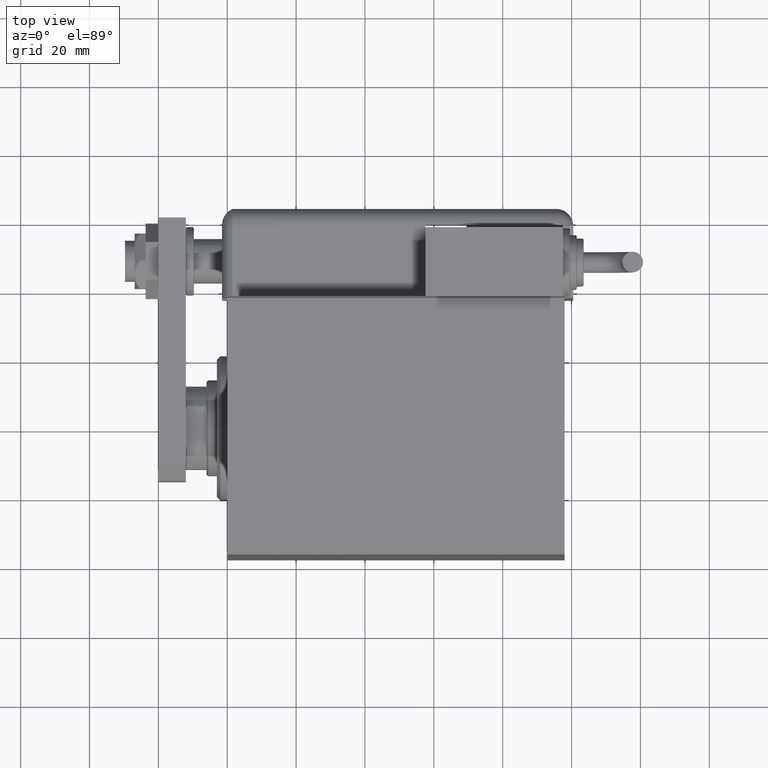
[diagram: clean part render]
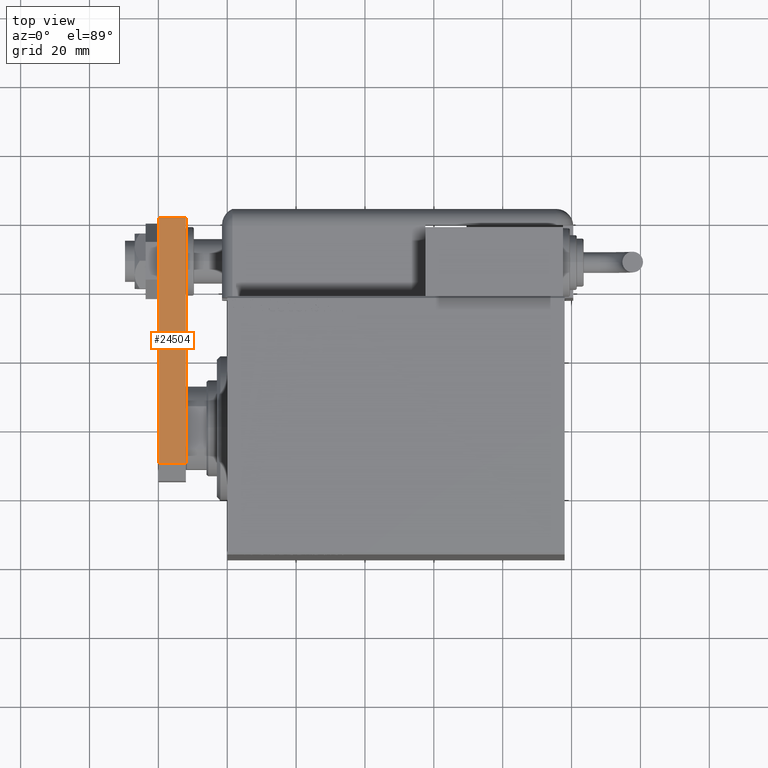
[diagram: same view with one face highlighted and labeled with its STEP entity id]
A machine part, top view. The second image highlights one B-rep face of the part: STEP entity #24504.
In plain terms, the highlighted planar face has unit normal (-0, -0, -1).
Its self-contained STEP definition (entity closure, byte-faithful):
#2320 = VECTOR ( 'NONE', #53576, 1000.000000000000000 ) ;
#2898 = EDGE_CURVE ( 'NONE', #52965, #39193, #20968, .T. ) ;
#2907 = CARTESIAN_POINT ( 'NONE',  ( -14.99999999999999822, 76.50000000000000000, 0.000000000000000000 ) ) ;
#3573 = CARTESIAN_POINT ( 'NONE',  ( -14.99999999999999822, 76.50000000000000000, 8.000000000000000000 ) ) ;
#5253 = CARTESIAN_POINT ( 'NONE',  ( -14.99999999999999822, 76.50000000000000000, 8.000000000000000000 ) ) ;
#11694 = EDGE_CURVE ( 'NONE', #20340, #59648, #36750, .T. ) ;
#15295 = DIRECTION ( 'NONE',  ( 1.000000000000000000, -1.360567432138672574E-16, 0.000000000000000000 ) ) ;
#16317 = ORIENTED_EDGE ( 'NONE', *, *, #59207, .T. ) ;
#18574 = EDGE_CURVE ( 'NONE', #20340, #39193, #20852, .T. ) ;
#18632 = VECTOR ( 'NONE', #45245, 1000.000000000000000 ) ;
#19267 = DIRECTION ( 'NONE',  ( 1.360567432138672574E-16, 1.000000000000000000, 0.000000000000000000 ) ) ;
#20340 = VERTEX_POINT ( 'NONE', #34857 ) ;
#20852 = LINE ( 'NONE', #21160, #53354 ) ;
#20968 = LINE ( 'NONE', #38955, #2320 ) ;
#21160 = CARTESIAN_POINT ( 'NONE',  ( -14.99999999999999822, 76.50000000000000000, 8.000000000000000000 ) ) ;
#23355 = CARTESIAN_POINT ( 'NONE',  ( -15.00000000000000888, 5.000000000000018652, 8.000000000000000000 ) ) ;
#23878 = EDGE_LOOP ( 'NONE', ( #16317, #31130, #43075, #45845 ) ) ;
#24136 = FACE_OUTER_BOUND ( 'NONE', #23878, .T. ) ;
#24504 = ADVANCED_FACE ( 'NONE', ( #24136 ), #56430, .F. ) ;
#26046 = DIRECTION ( 'NONE',  ( -1.360567432138672328E-16, -1.000000000000000000, 0.000000000000000000 ) ) ;
#28511 = LINE ( 'NONE', #2907, #18632 ) ;
#31130 = ORIENTED_EDGE ( 'NONE', *, *, #2898, .T. ) ;
#31819 = VECTOR ( 'NONE', #35866, 1000.000000000000000 ) ;
#34211 = CARTESIAN_POINT ( 'NONE',  ( -15.00000000000000888, 5.000000000000018652, 0.000000000000000000 ) ) ;
#34857 = CARTESIAN_POINT ( 'NONE',  ( -14.99999999999999822, 76.50000000000000000, 8.000000000000000000 ) ) ;
#35866 = DIRECTION ( 'NONE',  ( -0.000000000000000000, -0.000000000000000000, -1.000000000000000000 ) ) ;
#36750 = LINE ( 'NONE', #3573, #31819 ) ;
#38955 = CARTESIAN_POINT ( 'NONE',  ( -15.00000000000000888, 5.000000000000018652, 8.000000000000000000 ) ) ;
#39193 = VERTEX_POINT ( 'NONE', #23355 ) ;
#43075 = ORIENTED_EDGE ( 'NONE', *, *, #18574, .F. ) ;
#45245 = DIRECTION ( 'NONE',  ( -1.360567432138672328E-16, -1.000000000000000000, 0.000000000000000000 ) ) ;
#45845 = ORIENTED_EDGE ( 'NONE', *, *, #11694, .T. ) ;
#49722 = AXIS2_PLACEMENT_3D ( 'NONE', #5253, #15295, #19267 ) ;
#52965 = VERTEX_POINT ( 'NONE', #34211 ) ;
#53354 = VECTOR ( 'NONE', #26046, 1000.000000000000000 ) ;
#53576 = DIRECTION ( 'NONE',  ( 0.000000000000000000, 0.000000000000000000, 1.000000000000000000 ) ) ;
#56430 = PLANE ( 'NONE',  #49722 ) ;
#59207 = EDGE_CURVE ( 'NONE', #59648, #52965, #28511, .T. ) ;
#59648 = VERTEX_POINT ( 'NONE', #59764 ) ;
#59764 = CARTESIAN_POINT ( 'NONE',  ( -14.99999999999999822, 76.50000000000000000, 0.000000000000000000 ) ) ;